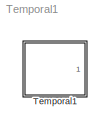
MODEL Temporal1
KIND model
CONFIG AbsTol = auto
CONFIG FixedStep = auto
CONFIG MaxStep = auto
CONFIG MinStep = auto
CONFIG RelTol = 1e-3
CONFIG Solver = ode45
CONFIG SolverMode = Auto
CONFIG StartTime = 0.0
CONFIG StopTime = 10.0
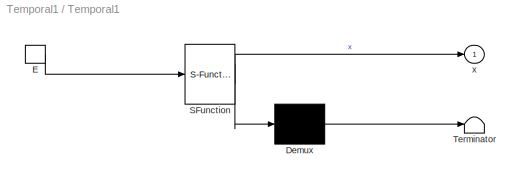
BLOCK [SubSystem] Temporal1
  MaskDescription = Stateflow diagram
  MaskDisplay = plot(sf('Private','sfblk','xIcon'),sf('Private','sfblk','yIcon'));text(0.5,0,sf('Private', 'sfblk', 'tIcon'),'HorizontalAl','Center','VerticalAl','Bottom');
  MaskIconFrame = off
  MaskIconOpaque = off
  MaskIconRotate = none
  MaskIconUnits = autoscale
  MaskSelfModifiable = on
  MaskType = Stateflow
  Ports = [0, 1, 0, 1]
  TreatAsAtomicUnit = off
BLOCK [Demux] Temporal1/ Demux 
  Outputs = 1
  Ports = [1, 1]
BLOCK [S-Function] Temporal1/ SFunction 
  FunctionName = sf_sfun
  PortCounts = [1 2]
  Ports = [1, 2]
  Tag = Stateflow S-Function Temporal1 1
BLOCK [Terminator] Temporal1/ Terminator 
BLOCK [TriggerPort] Temporal1/E
  Ports = [0, 1]
  ShowOutputPort = on
BLOCK [Outport] Temporal1/x
LINE Temporal1/ Demux :1 -> Temporal1/ Terminator :1
LINE Temporal1/ SFunction :1 -> Temporal1/ Demux :1
LINE Temporal1/ SFunction :2 -> Temporal1/x:1
LINE Temporal1/E:1 -> Temporal1/ SFunction :1
CHART Temporal1 states=2 transitions=3
  STATE_LABEL 'A/\\nx++;'
  STATE_LABEL 'B/\\nx++;'
